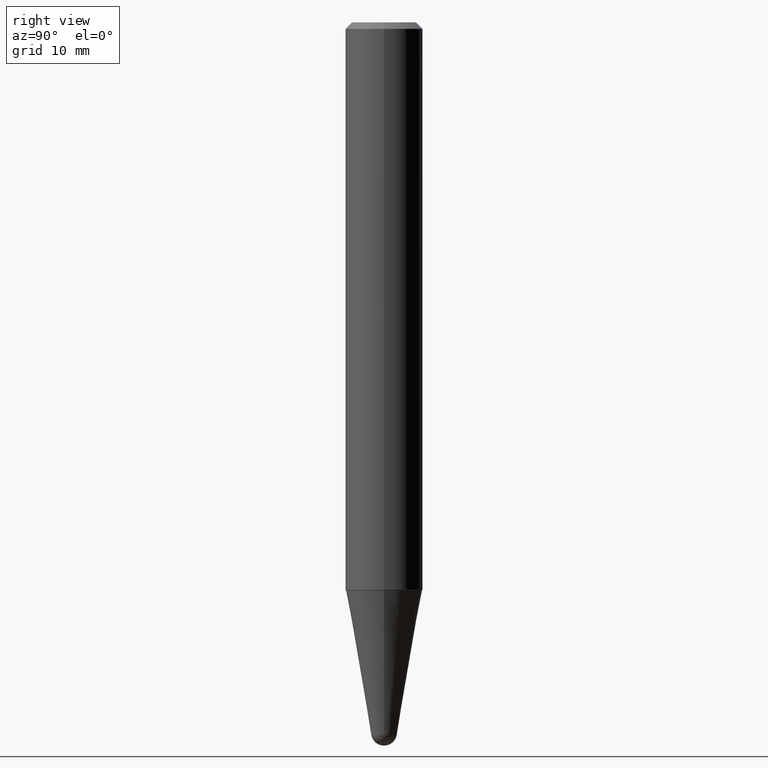
[diagram: clean part render]
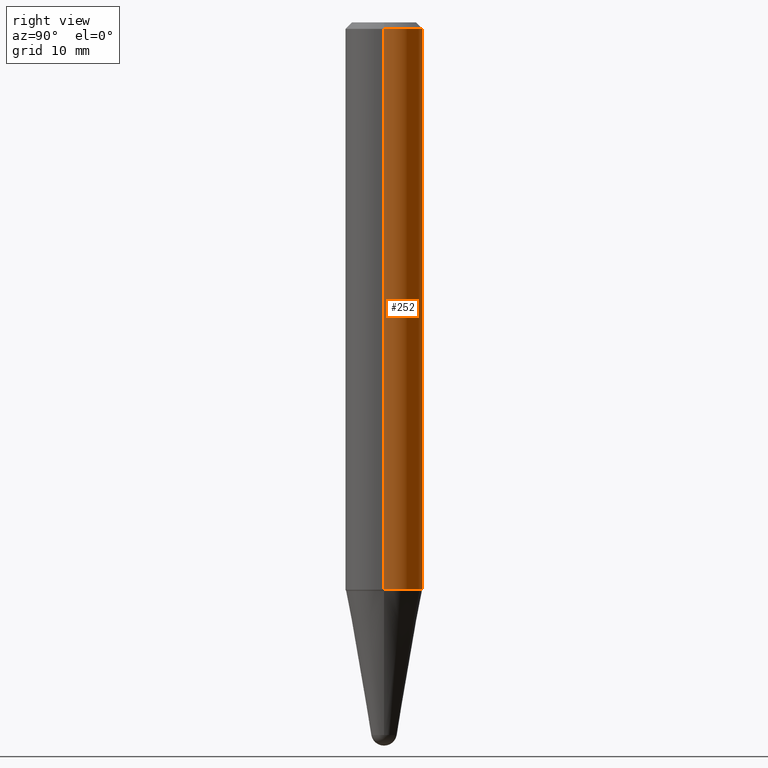
[diagram: same view with one face highlighted and labeled with its STEP entity id]
A machine part, right view. The second image highlights one B-rep face of the part: STEP entity #252.
In plain terms, the highlighted cylindrical surface (partial cylindrical patch) has radius 4.7625 mm, axis along (-0, 0, 1).
Its self-contained STEP definition (entity closure, byte-faithful):
#1 = VERTEX_POINT ( 'NONE', #363 ) ;
#7 = EDGE_CURVE ( 'NONE', #1, #26, #260, .T. ) ;
#26 = VERTEX_POINT ( 'NONE', #344 ) ;
#31 = CARTESIAN_POINT ( 'NONE',  ( -0.1874999999999999722, -3.515420659890972439E-15, -0.03125000000000003469 ) ) ;
#33 = CARTESIAN_POINT ( 'NONE',  ( -0.1875000000000001943, 1.332267629550191398E-15, 5.931196827434205055E-16 ) ) ;
#40 = DIRECTION ( 'NONE',  ( 1.000000000000000000, -6.982962677686269866E-15, 0.000000000000000000 ) ) ;
#47 = DIRECTION ( 'NONE',  ( 1.000000000000000000, -6.982962677686266711E-15, 0.000000000000000000 ) ) ;
#109 = DIRECTION ( 'NONE',  ( -2.445468806185136877E-29, 3.491481338843145188E-15, 1.000000000000000000 ) ) ;
#120 = DIRECTION ( 'NONE',  ( 1.000000000000000000, -6.982962677686265922E-15, 4.852736867747361162E-29 ) ) ;
#140 = EDGE_LOOP ( 'NONE', ( #308, #180, #235, #177 ) ) ;
#166 = EDGE_CURVE ( 'NONE', #26, #402, #182, .T. ) ;
#177 = ORIENTED_EDGE ( 'NONE', *, *, #184, .F. ) ;
#179 = DIRECTION ( 'NONE',  ( -2.445468806185136877E-29, 3.491481338843145188E-15, 1.000000000000000000 ) ) ;
#180 = ORIENTED_EDGE ( 'NONE', *, *, #166, .T. ) ;
#181 = VECTOR ( 'NONE', #179, 39.37007874015748143 ) ;
#182 = LINE ( 'NONE', #33, #181 ) ;
#184 = EDGE_CURVE ( 'NONE', #1, #249, #371, .T. ) ;
#188 = CARTESIAN_POINT ( 'NONE',  ( 0.1875000000000001943, -1.309305502066174022E-15, 5.931196827434387479E-16 ) ) ;
#192 = CARTESIAN_POINT ( 'NONE',  ( -1.450455682483482035E-44, 2.070866303999251778E-30, 5.931196827434296760E-16 ) ) ;
#195 = CIRCLE ( 'NONE', #273, 0.1874999999999999722 ) ;
#229 = CARTESIAN_POINT ( 'NONE',  ( 7.642090019328561499E-31, -1.091087918388484350E-16, -0.03125000000000003469 ) ) ;
#232 = DIRECTION ( 'NONE',  ( -2.445468806185136597E-29, 3.491481338843145583E-15, 1.000000000000000000 ) ) ;
#235 = ORIENTED_EDGE ( 'NONE', *, *, #303, .F. ) ;
#236 = CYLINDRICAL_SURFACE ( 'NONE', #388, 0.1875000000000001943 ) ;
#249 = VERTEX_POINT ( 'NONE', #265 ) ;
#252 = ADVANCED_FACE ( 'NONE', ( #272 ), #236, .T. ) ;
#260 = CIRCLE ( 'NONE', #396, 0.1875000000000003608 ) ;
#265 = CARTESIAN_POINT ( 'NONE',  ( 0.1874999999999999722, -1.418414293905023123E-15, -0.03125000000000003469 ) ) ;
#272 = FACE_OUTER_BOUND ( 'NONE', #140, .T. ) ;
#273 = AXIS2_PLACEMENT_3D ( 'NONE', #229, #411, #47 ) ;
#303 = EDGE_CURVE ( 'NONE', #249, #402, #195, .T. ) ;
#308 = ORIENTED_EDGE ( 'NONE', *, *, #7, .T. ) ;
#344 = CARTESIAN_POINT ( 'NONE',  ( -0.1875000000000003608, -8.254000157493289148E-15, -2.745616217504904810 ) ) ;
#363 = CARTESIAN_POINT ( 'NONE',  ( 0.1875000000000003608, -1.089557328910965674E-14, -2.745616217504904810 ) ) ;
#369 = DIRECTION ( 'NONE',  ( -2.445468806185136597E-29, 3.491481338843145583E-15, 1.000000000000000000 ) ) ;
#371 = LINE ( 'NONE', #188, #383 ) ;
#383 = VECTOR ( 'NONE', #109, 39.37007874015748143 ) ;
#388 = AXIS2_PLACEMENT_3D ( 'NONE', #192, #232, #120 ) ;
#396 = AXIS2_PLACEMENT_3D ( 'NONE', #397, #369, #40 ) ;
#397 = CARTESIAN_POINT ( 'NONE',  ( 6.714318813664270048E-29, -9.586267787043478574E-15, -2.745616217504904810 ) ) ;
#402 = VERTEX_POINT ( 'NONE', #31 ) ;
#411 = DIRECTION ( 'NONE',  ( -2.445468806185136597E-29, 3.491481338843145583E-15, 1.000000000000000000 ) ) ;